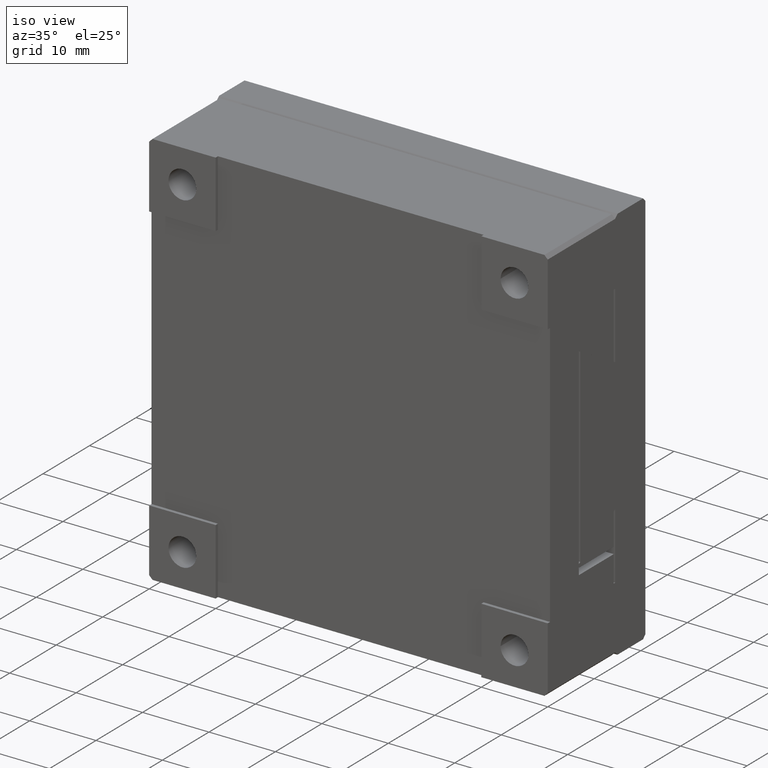
[diagram: clean part render]
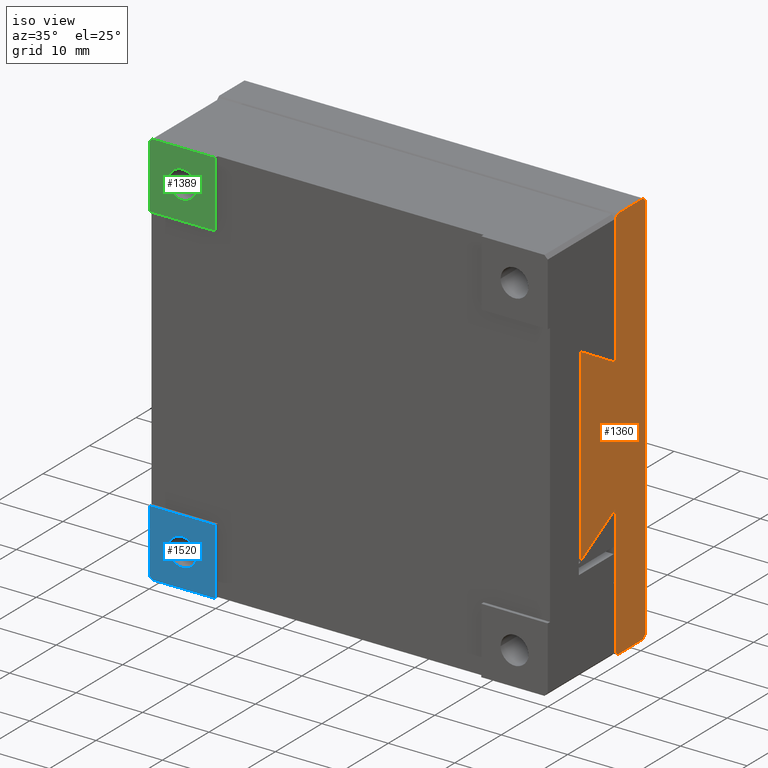
[diagram: same view with three faces highlighted in distinct colors, each labeled with its STEP entity id]
A machine part, iso view with three faces highlighted in distinct colors.
Their STEP definitions:

[orange] entity #1360 — the highlighted planar face has unit normal (-1, 0, 0).
#140 = VECTOR ( 'NONE', #2461, 999.9999999999998863 ) ;
#171 = DIRECTION ( 'NONE',  ( 0.000000000000000000, 0.000000000000000000, 1.000000000000000000 ) ) ;
#175 = EDGE_CURVE ( 'NONE', #1999, #1387, #3227, .T. ) ;
#257 = VECTOR ( 'NONE', #1613, 1000.000000000000000 ) ;
#313 = VECTOR ( 'NONE', #832, 1000.000000000000114 ) ;
#325 = EDGE_CURVE ( 'NONE', #1810, #1999, #919, .T. ) ;
#330 = VERTEX_POINT ( 'NONE', #3432 ) ;
#385 = CARTESIAN_POINT ( 'NONE',  ( 60.00000000000000000, 21.00000000000000000, 60.00000000000000000 ) ) ;
#427 = VERTEX_POINT ( 'NONE', #448 ) ;
#448 = CARTESIAN_POINT ( 'NONE',  ( 60.00000000000000000, 14.50000000000000178, 59.50000000000001421 ) ) ;
#476 = CARTESIAN_POINT ( 'NONE',  ( 60.00000000000000000, 14.50000000000000000, 0.000000000000000000 ) ) ;
#629 = AXIS2_PLACEMENT_3D ( 'NONE', #978, #2753, #700 ) ;
#630 = EDGE_CURVE ( 'NONE', #2794, #2027, #3396, .T. ) ;
#638 = DIRECTION ( 'NONE',  ( -0.000000000000000000, -0.7071067811865474617, -0.7071067811865474617 ) ) ;
#674 = LINE ( 'NONE', #2872, #3678 ) ;
#692 = ORIENTED_EDGE ( 'NONE', *, *, #1507, .F. ) ;
#695 = LINE ( 'NONE', #385, #1359 ) ;
#700 = DIRECTION ( 'NONE',  ( 0.000000000000000000, 0.000000000000000000, 1.000000000000000000 ) ) ;
#780 = CARTESIAN_POINT ( 'NONE',  ( 60.00000000000000000, 14.50000000000000000, 0.000000000000000000 ) ) ;
#822 = CARTESIAN_POINT ( 'NONE',  ( 60.00000000000000000, 7.000000000000000888, 0.000000000000000000 ) ) ;
#832 = DIRECTION ( 'NONE',  ( 0.000000000000000000, 0.8660317547072599043, -0.4999889997176581447 ) ) ;
#880 = VERTEX_POINT ( 'NONE', #3700 ) ;
#919 = LINE ( 'NONE', #2893, #1814 ) ;
#978 = CARTESIAN_POINT ( 'NONE',  ( 60.00000000000000000, 21.00000000000000000, 0.000000000000000000 ) ) ;
#1006 = CARTESIAN_POINT ( 'NONE',  ( 60.00000000000000000, 15.00000000000000000, 60.00000000000000000 ) ) ;
#1042 = EDGE_CURVE ( 'NONE', #880, #3618, #2758, .T. ) ;
#1189 = EDGE_LOOP ( 'NONE', ( #2012, #1944, #3646, #2210, #2863, #1669, #2331, #692, #1524, #3293, #3522, #3707 ) ) ;
#1287 = DIRECTION ( 'NONE',  ( -0.000000000000000000, -1.000000000000000000, -0.000000000000000000 ) ) ;
#1329 = VECTOR ( 'NONE', #1287, 1000.000000000000000 ) ;
#1347 = VERTEX_POINT ( 'NONE', #1914 ) ;
#1355 = VECTOR ( 'NONE', #1548, 1000.000000000000000 ) ;
#1359 = VECTOR ( 'NONE', #1545, 1000.000000000000000 ) ;
#1360 = ADVANCED_FACE ( 'NONE', ( #3552 ), #3317, .F. ) ;
#1387 = VERTEX_POINT ( 'NONE', #2768 ) ;
#1474 = VECTOR ( 'NONE', #2491, 1000.000000000000000 ) ;
#1507 = EDGE_CURVE ( 'NONE', #3618, #2794, #2838, .T. ) ;
#1524 = ORIENTED_EDGE ( 'NONE', *, *, #1042, .F. ) ;
#1545 = DIRECTION ( 'NONE',  ( 0.000000000000000000, 1.000000000000000000, 0.000000000000000000 ) ) ;
#1548 = DIRECTION ( 'NONE',  ( 0.000000000000000000, -0.7071067811865480168, 0.7071067811865470176 ) ) ;
#1556 = CARTESIAN_POINT ( 'NONE',  ( 60.00000000000000000, 14.50000000000000000, 20.00000000000000355 ) ) ;
#1571 = CARTESIAN_POINT ( 'NONE',  ( 60.00000000000000000, 21.00000000000000000, 0.000000000000000000 ) ) ;
#1613 = DIRECTION ( 'NONE',  ( 0.000000000000000000, 0.000000000000000000, 1.000000000000000000 ) ) ;
#1669 = ORIENTED_EDGE ( 'NONE', *, *, #3425, .F. ) ;
#1673 = DIRECTION ( 'NONE',  ( -0.000000000000000000, -0.8659817536309456498, -0.5000755966634164995 ) ) ;
#1683 = EDGE_CURVE ( 'NONE', #427, #3336, #674, .T. ) ;
#1708 = EDGE_CURVE ( 'NONE', #3336, #330, #695, .T. ) ;
#1810 = VERTEX_POINT ( 'NONE', #2665 ) ;
#1814 = VECTOR ( 'NONE', #638, 1000.000000000000114 ) ;
#1891 = CARTESIAN_POINT ( 'NONE',  ( 60.00000000000000000, 6.999999999999999112, 15.66900000000000226 ) ) ;
#1914 = CARTESIAN_POINT ( 'NONE',  ( 60.00000000000000000, 14.49999999999999289, 39.99999999999997868 ) ) ;
#1918 = LINE ( 'NONE', #2475, #1474 ) ;
#1921 = CARTESIAN_POINT ( 'NONE',  ( 60.00000000000000000, 20.50000000000000000, -2.710505431213761085E-17 ) ) ;
#1933 = LINE ( 'NONE', #476, #257 ) ;
#1944 = ORIENTED_EDGE ( 'NONE', *, *, #3240, .F. ) ;
#1971 = CARTESIAN_POINT ( 'NONE',  ( 60.00000000000000000, 21.00000000000000000, 59.50000000000000000 ) ) ;
#1999 = VERTEX_POINT ( 'NONE', #1921 ) ;
#2012 = ORIENTED_EDGE ( 'NONE', *, *, #3724, .F. ) ;
#2027 = VERTEX_POINT ( 'NONE', #3046 ) ;
#2032 = DIRECTION ( 'NONE',  ( 0.000000000000000000, 0.7071067811865474617, 0.7071067811865474617 ) ) ;
#2146 = CARTESIAN_POINT ( 'NONE',  ( 60.00000000000000000, 20.50000000000000000, 60.00000000000000000 ) ) ;
#2183 = VERTEX_POINT ( 'NONE', #1971 ) ;
#2210 = ORIENTED_EDGE ( 'NONE', *, *, #1683, .F. ) ;
#2267 = LINE ( 'NONE', #3166, #313 ) ;
#2331 = ORIENTED_EDGE ( 'NONE', *, *, #630, .F. ) ;
#2353 = VECTOR ( 'NONE', #171, 1000.000000000000000 ) ;
#2461 = DIRECTION ( 'NONE',  ( 0.000000000000000000, 0.7071067811865521247, -0.7071067811865430208 ) ) ;
#2475 = CARTESIAN_POINT ( 'NONE',  ( 60.00000000000000000, 21.00000000000000000, 59.50000000000000711 ) ) ;
#2491 = DIRECTION ( 'NONE',  ( -0.000000000000000000, -0.000000000000000000, -1.000000000000000000 ) ) ;
#2665 = CARTESIAN_POINT ( 'NONE',  ( 60.00000000000000000, 21.00000000000000000, 0.5000000000000000000 ) ) ;
#2753 = DIRECTION ( 'NONE',  ( -1.000000000000000000, 0.000000000000000000, 0.000000000000000000 ) ) ;
#2758 = LINE ( 'NONE', #780, #2353 ) ;
#2768 = CARTESIAN_POINT ( 'NONE',  ( 60.00000000000000000, 15.00000000000000178, 0.000000000000000000 ) ) ;
#2794 = VERTEX_POINT ( 'NONE', #1891 ) ;
#2838 = LINE ( 'NONE', #3367, #3389 ) ;
#2842 = EDGE_CURVE ( 'NONE', #1387, #880, #3298, .T. ) ;
#2863 = ORIENTED_EDGE ( 'NONE', *, *, #3694, .F. ) ;
#2872 = CARTESIAN_POINT ( 'NONE',  ( 60.00000000000000000, 14.50000000000000000, 59.50000000000000711 ) ) ;
#2893 = CARTESIAN_POINT ( 'NONE',  ( 60.00000000000000000, 21.00000000000000000, 0.5000000000000000000 ) ) ;
#3046 = CARTESIAN_POINT ( 'NONE',  ( 60.00000000000000000, 6.999999999999999112, 44.33000000000000540 ) ) ;
#3053 = CARTESIAN_POINT ( 'NONE',  ( 60.00000000000000000, 15.00000000000000178, 0.000000000000000000 ) ) ;
#3166 = CARTESIAN_POINT ( 'NONE',  ( 60.00000000000000000, 7.000000000000000888, 44.32999999999999829 ) ) ;
#3227 = LINE ( 'NONE', #1571, #1329 ) ;
#3240 = EDGE_CURVE ( 'NONE', #330, #2183, #3344, .T. ) ;
#3293 = ORIENTED_EDGE ( 'NONE', *, *, #2842, .F. ) ;
#3298 = LINE ( 'NONE', #3053, #1355 ) ;
#3317 = PLANE ( 'NONE',  #629 ) ;
#3336 = VERTEX_POINT ( 'NONE', #1006 ) ;
#3344 = LINE ( 'NONE', #2146, #140 ) ;
#3367 = CARTESIAN_POINT ( 'NONE',  ( 60.00000000000000000, 14.50000000000000000, 20.00000000000000000 ) ) ;
#3389 = VECTOR ( 'NONE', #1673, 1000.000000000000114 ) ;
#3396 = LINE ( 'NONE', #822, #3543 ) ;
#3425 = EDGE_CURVE ( 'NONE', #2027, #1347, #2267, .T. ) ;
#3432 = CARTESIAN_POINT ( 'NONE',  ( 60.00000000000000000, 20.50000000000000000, 60.00000000000000000 ) ) ;
#3522 = ORIENTED_EDGE ( 'NONE', *, *, #175, .F. ) ;
#3543 = VECTOR ( 'NONE', #3603, 1000.000000000000000 ) ;
#3552 = FACE_OUTER_BOUND ( 'NONE', #1189, .T. ) ;
#3603 = DIRECTION ( 'NONE',  ( 0.000000000000000000, 0.000000000000000000, 1.000000000000000000 ) ) ;
#3618 = VERTEX_POINT ( 'NONE', #1556 ) ;
#3646 = ORIENTED_EDGE ( 'NONE', *, *, #1708, .F. ) ;
#3678 = VECTOR ( 'NONE', #2032, 1000.000000000000114 ) ;
#3694 = EDGE_CURVE ( 'NONE', #1347, #427, #1933, .T. ) ;
#3700 = CARTESIAN_POINT ( 'NONE',  ( 60.00000000000000000, 14.50000000000000000, 0.4999999999999998890 ) ) ;
#3707 = ORIENTED_EDGE ( 'NONE', *, *, #325, .F. ) ;
#3724 = EDGE_CURVE ( 'NONE', #2183, #1810, #1918, .T. ) ;

[blue] entity #1520 — the highlighted planar face has unit normal (0, 1, 0).
#49 = DIRECTION ( 'NONE',  ( 0.000000000000000000, 0.000000000000000000, -1.000000000000000000 ) ) ;
#68 = CARTESIAN_POINT ( 'NONE',  ( 0.000000000000000000, 0.000000000000000000, 0.5000000000000000000 ) ) ;
#217 = FACE_BOUND ( 'NONE', #1959, .T. ) ;
#418 = EDGE_CURVE ( 'NONE', #2921, #2488, #1303, .T. ) ;
#495 = DIRECTION ( 'NONE',  ( 0.000000000000000000, 0.000000000000000000, -1.000000000000000000 ) ) ;
#607 = ORIENTED_EDGE ( 'NONE', *, *, #836, .F. ) ;
#613 = LINE ( 'NONE', #2918, #2014 ) ;
#738 = LINE ( 'NONE', #1285, #3511 ) ;
#824 = CARTESIAN_POINT ( 'NONE',  ( 0.000000000000000000, 0.000000000000000000, 0.000000000000000000 ) ) ;
#836 = EDGE_CURVE ( 'NONE', #2739, #2739, #2349, .T. ) ;
#853 = DIRECTION ( 'NONE',  ( 0.000000000000000000, -1.000000000000000000, 0.000000000000000000 ) ) ;
#1044 = EDGE_CURVE ( 'NONE', #3329, #2488, #2777, .T. ) ;
#1049 = EDGE_LOOP ( 'NONE', ( #3231, #2789, #2307, #2031, #2624 ) ) ;
#1088 = VECTOR ( 'NONE', #49, 1000.000000000000000 ) ;
#1205 = EDGE_CURVE ( 'NONE', #2914, #2527, #1213, .T. ) ;
#1213 = LINE ( 'NONE', #68, #1088 ) ;
#1246 = DIRECTION ( 'NONE',  ( 1.000000000000000000, 0.000000000000000000, 0.000000000000000000 ) ) ;
#1285 = CARTESIAN_POINT ( 'NONE',  ( 0.5000000000000000000, -6.938893903907228378E-15, 0.000000000000000000 ) ) ;
#1303 = LINE ( 'NONE', #2691, #2347 ) ;
#1305 = EDGE_CURVE ( 'NONE', #2527, #2921, #738, .T. ) ;
#1410 = DIRECTION ( 'NONE',  ( 0.000000000000000000, 1.000000000000000000, 0.000000000000000000 ) ) ;
#1520 = ADVANCED_FACE ( 'NONE', ( #2805, #217 ), #3398, .F. ) ;
#1575 = EDGE_CURVE ( 'NONE', #2914, #3329, #613, .T. ) ;
#1644 = CARTESIAN_POINT ( 'NONE',  ( -3.614007241618347908E-17, -2.312964634635742661E-15, 0.5000000000000000000 ) ) ;
#1874 = DIRECTION ( 'NONE',  ( 0.7071067811865474617, 0.000000000000000000, -0.7071067811865474617 ) ) ;
#1897 = CARTESIAN_POINT ( 'NONE',  ( 7.099999999999989875, 0.000000000000000000, 5.000000000000000000 ) ) ;
#1959 = EDGE_LOOP ( 'NONE', ( #607 ) ) ;
#2014 = VECTOR ( 'NONE', #3512, 1000.000000000000000 ) ;
#2031 = ORIENTED_EDGE ( 'NONE', *, *, #418, .T. ) ;
#2093 = CARTESIAN_POINT ( 'NONE',  ( 5.000000000000000000, 0.000000000000000000, 5.000000000000000000 ) ) ;
#2307 = ORIENTED_EDGE ( 'NONE', *, *, #1305, .T. ) ;
#2347 = VECTOR ( 'NONE', #1246, 1000.000000000000000 ) ;
#2349 = CIRCLE ( 'NONE', #2410, 2.099999999999989875 ) ;
#2410 = AXIS2_PLACEMENT_3D ( 'NONE', #2093, #853, #3214 ) ;
#2488 = VERTEX_POINT ( 'NONE', #3643 ) ;
#2527 = VERTEX_POINT ( 'NONE', #1644 ) ;
#2624 = ORIENTED_EDGE ( 'NONE', *, *, #1044, .F. ) ;
#2691 = CARTESIAN_POINT ( 'NONE',  ( 59.50000000000000711, 0.000000000000000000, 0.000000000000000000 ) ) ;
#2739 = VERTEX_POINT ( 'NONE', #1897 ) ;
#2777 = LINE ( 'NONE', #3645, #3546 ) ;
#2789 = ORIENTED_EDGE ( 'NONE', *, *, #1205, .T. ) ;
#2805 = FACE_OUTER_BOUND ( 'NONE', #1049, .T. ) ;
#2834 = CARTESIAN_POINT ( 'NONE',  ( 0.000000000000000000, 0.000000000000000000, 10.00000000000000000 ) ) ;
#2913 = AXIS2_PLACEMENT_3D ( 'NONE', #824, #1410, #3689 ) ;
#2914 = VERTEX_POINT ( 'NONE', #2834 ) ;
#2918 = CARTESIAN_POINT ( 'NONE',  ( 10.00000000000000000, 0.000000000000000000, 10.00000000000000000 ) ) ;
#2921 = VERTEX_POINT ( 'NONE', #3686 ) ;
#3214 = DIRECTION ( 'NONE',  ( 1.000000000000000000, 0.000000000000000000, 0.000000000000000000 ) ) ;
#3231 = ORIENTED_EDGE ( 'NONE', *, *, #1575, .F. ) ;
#3329 = VERTEX_POINT ( 'NONE', #3581 ) ;
#3398 = PLANE ( 'NONE',  #2913 ) ;
#3511 = VECTOR ( 'NONE', #1874, 1000.000000000000114 ) ;
#3512 = DIRECTION ( 'NONE',  ( 1.000000000000000000, 0.000000000000000000, 0.000000000000000000 ) ) ;
#3546 = VECTOR ( 'NONE', #495, 1000.000000000000000 ) ;
#3581 = CARTESIAN_POINT ( 'NONE',  ( 10.00000000000000000, 0.000000000000000000, 10.00000000000000000 ) ) ;
#3643 = CARTESIAN_POINT ( 'NONE',  ( 10.00000000000000178, 0.000000000000000000, 0.000000000000000000 ) ) ;
#3645 = CARTESIAN_POINT ( 'NONE',  ( 10.00000000000000000, 0.000000000000000000, 0.000000000000000000 ) ) ;
#3686 = CARTESIAN_POINT ( 'NONE',  ( 0.5000000000000061062, -2.312964634635742661E-15, -1.159870449106888926E-15 ) ) ;
#3689 = DIRECTION ( 'NONE',  ( -1.000000000000000000, 0.000000000000000000, 0.000000000000000000 ) ) ;

[green] entity #1389 — the highlighted planar face has unit normal (0, 1, 0).
#51 = CARTESIAN_POINT ( 'NONE',  ( 0.000000000000000000, 0.000000000000000000, 59.50000000000000711 ) ) ;
#65 = VERTEX_POINT ( 'NONE', #51 ) ;
#135 = CARTESIAN_POINT ( 'NONE',  ( 10.00000000000000000, 0.000000000000000000, 50.00000000000000000 ) ) ;
#185 = FACE_OUTER_BOUND ( 'NONE', #1413, .T. ) ;
#188 = DIRECTION ( 'NONE',  ( 0.000000000000000000, -1.000000000000000000, 0.000000000000000000 ) ) ;
#310 = VECTOR ( 'NONE', #2896, 1000.000000000000000 ) ;
#387 = ORIENTED_EDGE ( 'NONE', *, *, #799, .F. ) ;
#453 = CARTESIAN_POINT ( 'NONE',  ( 10.00000000000000000, 0.000000000000000000, 60.00000000000000000 ) ) ;
#459 = ORIENTED_EDGE ( 'NONE', *, *, #2219, .F. ) ;
#484 = ORIENTED_EDGE ( 'NONE', *, *, #3636, .F. ) ;
#661 = LINE ( 'NONE', #3243, #2234 ) ;
#775 = DIRECTION ( 'NONE',  ( -1.000000000000000000, 0.000000000000000000, 0.000000000000000000 ) ) ;
#779 = CARTESIAN_POINT ( 'NONE',  ( 5.000000000000000000, 0.000000000000000000, 55.00000000000000000 ) ) ;
#799 = EDGE_CURVE ( 'NONE', #1283, #1974, #2287, .T. ) ;
#849 = CARTESIAN_POINT ( 'NONE',  ( 0.000000000000000000, 0.000000000000000000, 50.00000000000000000 ) ) ;
#933 = AXIS2_PLACEMENT_3D ( 'NONE', #779, #188, #2193 ) ;
#1059 = PLANE ( 'NONE',  #1906 ) ;
#1188 = EDGE_CURVE ( 'NONE', #3007, #65, #661, .T. ) ;
#1283 = VERTEX_POINT ( 'NONE', #453 ) ;
#1345 = FACE_BOUND ( 'NONE', #2983, .T. ) ;
#1389 = ADVANCED_FACE ( 'NONE', ( #185, #1345 ), #1059, .F. ) ;
#1413 = EDGE_LOOP ( 'NONE', ( #387, #3083, #2493, #3204, #459 ) ) ;
#1477 = VECTOR ( 'NONE', #2690, 1000.000000000000000 ) ;
#1501 = VECTOR ( 'NONE', #1722, 1000.000000000000000 ) ;
#1602 = VERTEX_POINT ( 'NONE', #3528 ) ;
#1722 = DIRECTION ( 'NONE',  ( -1.000000000000000000, 0.000000000000000000, 0.000000000000000000 ) ) ;
#1761 = EDGE_CURVE ( 'NONE', #1283, #3007, #3565, .T. ) ;
#1790 = DIRECTION ( 'NONE',  ( 0.000000000000000000, 0.000000000000000000, -1.000000000000000000 ) ) ;
#1906 = AXIS2_PLACEMENT_3D ( 'NONE', #2209, #3351, #775 ) ;
#1974 = VERTEX_POINT ( 'NONE', #135 ) ;
#2059 = CARTESIAN_POINT ( 'NONE',  ( 0.000000000000000000, 0.000000000000000000, 0.5000000000000000000 ) ) ;
#2193 = DIRECTION ( 'NONE',  ( 1.000000000000000000, 0.000000000000000000, 0.000000000000000000 ) ) ;
#2209 = CARTESIAN_POINT ( 'NONE',  ( 0.000000000000000000, 0.000000000000000000, 0.000000000000000000 ) ) ;
#2219 = EDGE_CURVE ( 'NONE', #1974, #1602, #3421, .T. ) ;
#2234 = VECTOR ( 'NONE', #2638, 999.9999999999998863 ) ;
#2287 = LINE ( 'NONE', #2323, #3420 ) ;
#2323 = CARTESIAN_POINT ( 'NONE',  ( 10.00000000000000000, 0.000000000000000000, 50.00000000000000000 ) ) ;
#2357 = CARTESIAN_POINT ( 'NONE',  ( 7.099999999999989875, 0.000000000000000000, 55.00000000000000000 ) ) ;
#2493 = ORIENTED_EDGE ( 'NONE', *, *, #1188, .T. ) ;
#2548 = CIRCLE ( 'NONE', #933, 2.099999999999989875 ) ;
#2618 = VERTEX_POINT ( 'NONE', #2357 ) ;
#2638 = DIRECTION ( 'NONE',  ( -0.7071067811865520136, 0.000000000000000000, -0.7071067811865431318 ) ) ;
#2640 = EDGE_CURVE ( 'NONE', #65, #1602, #3495, .T. ) ;
#2690 = DIRECTION ( 'NONE',  ( -1.000000000000000000, 0.000000000000000000, 0.000000000000000000 ) ) ;
#2896 = DIRECTION ( 'NONE',  ( 0.000000000000000000, 0.000000000000000000, -1.000000000000000000 ) ) ;
#2983 = EDGE_LOOP ( 'NONE', ( #484 ) ) ;
#3007 = VERTEX_POINT ( 'NONE', #3129 ) ;
#3083 = ORIENTED_EDGE ( 'NONE', *, *, #1761, .T. ) ;
#3129 = CARTESIAN_POINT ( 'NONE',  ( 0.5000000000000000000, 0.000000000000000000, 60.00000000000000000 ) ) ;
#3204 = ORIENTED_EDGE ( 'NONE', *, *, #2640, .T. ) ;
#3243 = CARTESIAN_POINT ( 'NONE',  ( 0.000000000000000000, 0.000000000000000000, 59.50000000000000711 ) ) ;
#3351 = DIRECTION ( 'NONE',  ( 0.000000000000000000, 1.000000000000000000, 0.000000000000000000 ) ) ;
#3420 = VECTOR ( 'NONE', #1790, 1000.000000000000000 ) ;
#3421 = LINE ( 'NONE', #849, #1501 ) ;
#3495 = LINE ( 'NONE', #2059, #310 ) ;
#3528 = CARTESIAN_POINT ( 'NONE',  ( 0.000000000000000000, 0.000000000000000000, 50.00000000000000000 ) ) ;
#3547 = CARTESIAN_POINT ( 'NONE',  ( 0.5000000000000000000, 0.000000000000000000, 60.00000000000000000 ) ) ;
#3565 = LINE ( 'NONE', #3547, #1477 ) ;
#3636 = EDGE_CURVE ( 'NONE', #2618, #2618, #2548, .T. ) ;